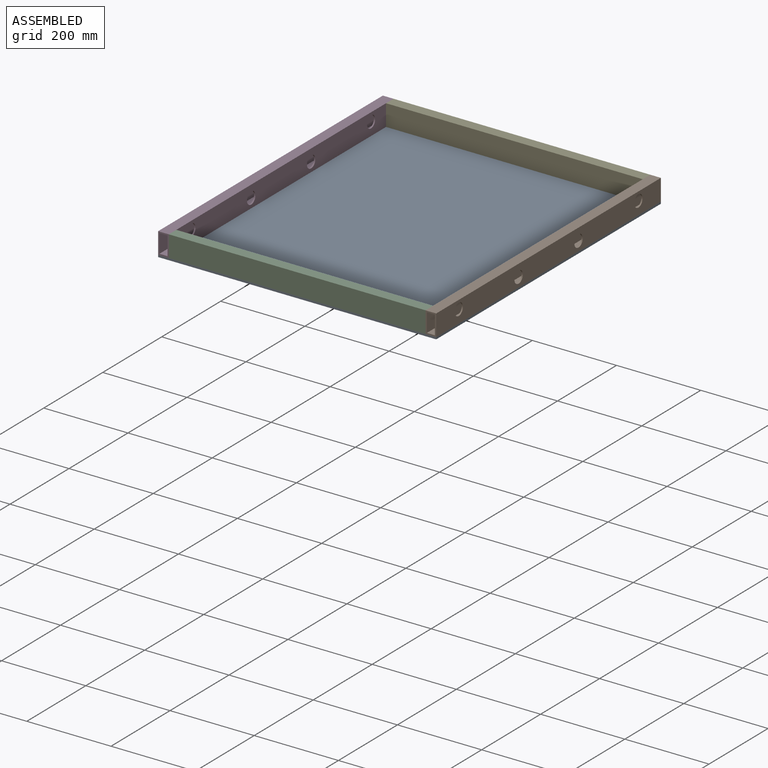
[diagram: assembled view]
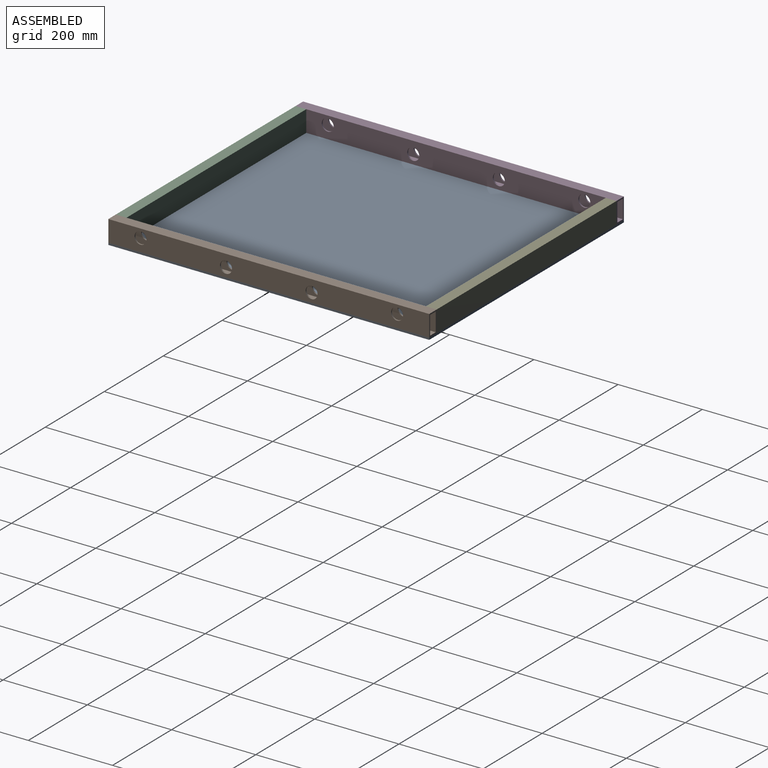
[diagram: assembled view, second angle]
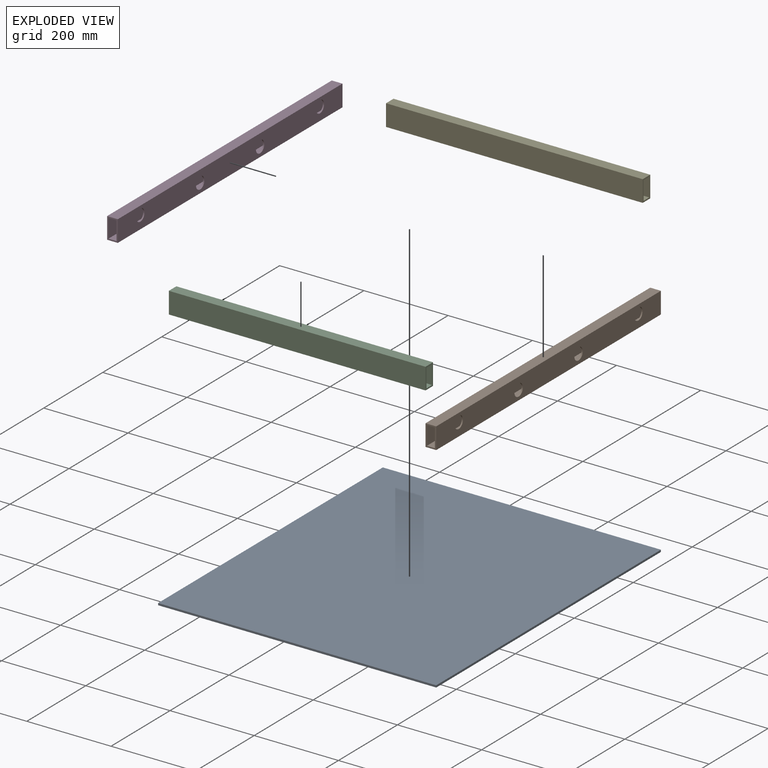
[diagram: exploded view]
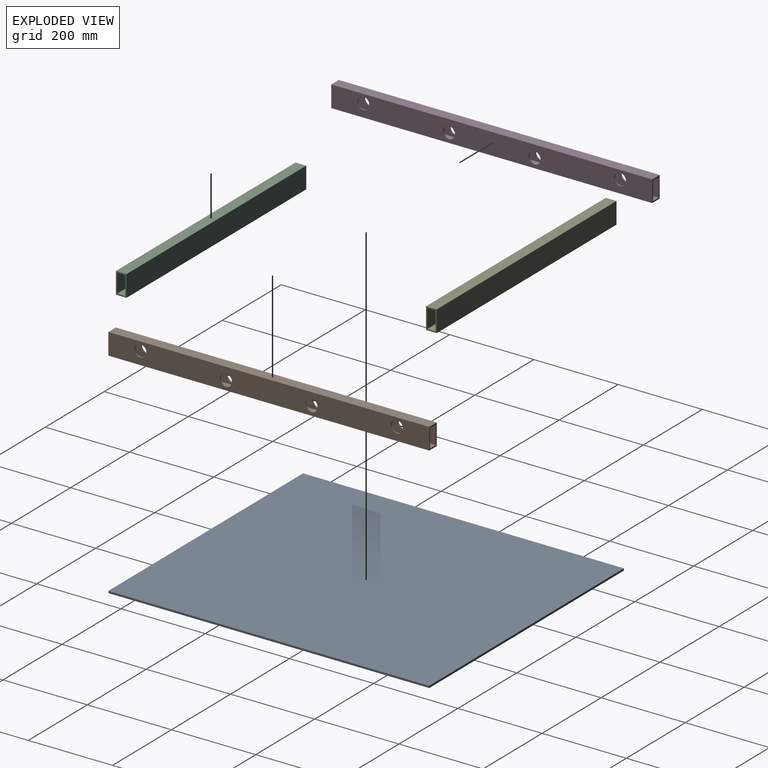
[diagram: exploded view, second angle]
ASSEMBLY  parts=5 mates=5
PART A: 6 faces, bbox 660.4x762x4.8 mm
  f0: plane 660.4x4.76mm, normal (0,-1,0), area 3145.2mm2, adj f1,f3,f4,f5
  f1: plane 762x4.76mm, normal (-1,0,0), area 3629mm2, adj f0,f2,f4,f5
  f2: plane 660.4x4.76mm, normal (0,1,0), area 3145.2mm2, adj f1,f3,f4,f5
  f3: plane 762x4.76mm, normal (1,0,0), area 3629mm2, adj f0,f2,f4,f5
  f4: plane 762x660.4mm, normal (0,0,-1), area 503224.8mm2, adj f0,f1,f2,f3
  f5: plane 762x660.4mm, normal (0,0,1), area 503224.8mm2, adj f0,f1,f2,f3
PART B: 18 faces, bbox 25.4x762x50.8 mm
  f0: plane 762x44.45mm, normal (-1,0,0), area 31310.3mm2, adj f1,f7,f8,f9,f10,f11,f12,f13
  f1: plane 762x19.05mm, normal (0,0,1), area 14516.1mm2, adj f0,f2,f8,f9
  f2: plane 762x44.45mm, normal (1,0,0), area 31310.3mm2, adj f1,f7,f8,f9,f14,f15,f16,f17
  f3: plane 762x50.8mm, normal (-1,0,0), area 36149mm2, adj f4,f6,f8,f9,f14,f15,f16,f17
  f4: plane 762x25.4mm, normal (0,0,-1), area 19354.8mm2, adj f3,f5,f8,f9
  f5: plane 762x50.8mm, normal (1,0,0), area 36149mm2, adj f4,f6,f8,f9,f10,f11,f12,f13
  f6: plane 762x25.4mm, normal (0,0,1), area 19354.8mm2, adj f3,f5,f8,f9
  f7: plane 762x19.05mm, normal (0,0,-1), area 14516.1mm2, adj f0,f2,f8,f9
  f8: plane 50.8x25.4mm, normal (0,-1,0), area 443.5mm2, adj f0,f1,f2,f3,f4,f5,f6,f7
  f9: plane 50.8x25.4mm, normal (0,1,0), area 443.5mm2, adj f0,f1,f2,f3,f4,f5,f6,f7
  f10: cylinder r=14.27mm len=28.55mm, axis (1,0,0), area 284.8mm2, adj f0,f5
  f11: cylinder r=14.27mm len=28.55mm, axis (1,0,0), area 284.8mm2, adj f0,f5
  f12: cylinder r=14.27mm len=28.55mm, axis (1,0,0), area 284.8mm2, adj f0,f5
  f13: cylinder r=14.27mm len=28.55mm, axis (1,0,0), area 284.8mm2, adj f0,f5
  f14: cylinder r=14.27mm len=28.55mm, axis (1,0,0), area 284.8mm2, adj f2,f3
  f15: cylinder r=14.27mm len=28.55mm, axis (1,0,0), area 284.8mm2, adj f2,f3
  f16: cylinder r=14.27mm len=28.55mm, axis (1,0,0), area 284.8mm2, adj f2,f3
  f17: cylinder r=14.27mm len=28.55mm, axis (1,0,0), area 284.8mm2, adj f2,f3
PART C: 10 faces, bbox 609.6x25.4x50.8 mm
  f0: plane 609.6x25.4mm, normal (0,0,-1), area 15483.8mm2, adj f1,f7,f8,f9
  f1: plane 609.6x50.8mm, normal (0,1,0), area 30967.7mm2, adj f0,f2,f8,f9
  f2: plane 609.6x25.4mm, normal (0,0,1), area 15483.8mm2, adj f1,f7,f8,f9
  f3: plane 609.6x44.45mm, normal (0,1,0), area 27096.7mm2, adj f4,f6,f8,f9
  f4: plane 609.6x19.05mm, normal (0,0,-1), area 11612.9mm2, adj f3,f5,f8,f9
  f5: plane 609.6x44.45mm, normal (0,-1,0), area 27096.7mm2, adj f4,f6,f8,f9
  f6: plane 609.6x19.05mm, normal (0,0,1), area 11612.9mm2, adj f3,f5,f8,f9
  f7: plane 609.6x50.8mm, normal (0,-1,0), area 30967.7mm2, adj f0,f2,f8,f9
  f8: plane 50.8x25.4mm, normal (1,0,0), area 443.5mm2, adj f0,f1,f2,f3,f4,f5,f6,f7
  f9: plane 50.8x25.4mm, normal (-1,0,0), area 443.5mm2, adj f0,f1,f2,f3,f4,f5,f6,f7
PART D: 18 faces, bbox 25.4x762x50.8 mm
  f0: plane 762x44.45mm, normal (-1,0,0), area 31310.3mm2, adj f1,f7,f8,f9,f10,f11,f12,f13
  f1: plane 762x19.05mm, normal (0,0,1), area 14516.1mm2, adj f0,f2,f8,f9
  f2: plane 762x44.45mm, normal (1,0,0), area 31310.3mm2, adj f1,f7,f8,f9,f14,f15,f16,f17
  f3: plane 762x50.8mm, normal (-1,0,0), area 36149mm2, adj f4,f6,f8,f9,f14,f15,f16,f17
  f4: plane 762x25.4mm, normal (0,0,-1), area 19354.8mm2, adj f3,f5,f8,f9
  f5: plane 762x50.8mm, normal (1,0,0), area 36149mm2, adj f4,f6,f8,f9,f10,f11,f12,f13
  f6: plane 762x25.4mm, normal (0,0,1), area 19354.8mm2, adj f3,f5,f8,f9
  f7: plane 762x19.05mm, normal (0,0,-1), area 14516.1mm2, adj f0,f2,f8,f9
  f8: plane 50.8x25.4mm, normal (0,-1,0), area 443.5mm2, adj f0,f1,f2,f3,f4,f5,f6,f7
  f9: plane 50.8x25.4mm, normal (0,1,0), area 443.5mm2, adj f0,f1,f2,f3,f4,f5,f6,f7
  f10: cylinder r=14.27mm len=28.55mm, axis (1,0,0), area 284.8mm2, adj f0,f5
  f11: cylinder r=14.27mm len=28.55mm, axis (1,0,0), area 284.8mm2, adj f0,f5
  f12: cylinder r=14.27mm len=28.55mm, axis (1,0,0), area 284.8mm2, adj f0,f5
  f13: cylinder r=14.27mm len=28.55mm, axis (1,0,0), area 284.8mm2, adj f0,f5
  f14: cylinder r=14.27mm len=28.55mm, axis (1,0,0), area 284.8mm2, adj f2,f3
  f15: cylinder r=14.27mm len=28.55mm, axis (1,0,0), area 284.8mm2, adj f2,f3
  f16: cylinder r=14.27mm len=28.55mm, axis (1,0,0), area 284.8mm2, adj f2,f3
  f17: cylinder r=14.27mm len=28.55mm, axis (1,0,0), area 284.8mm2, adj f2,f3
PART E: 10 faces, bbox 609.6x25.4x50.8 mm
  f0: plane 609.6x19.05mm, normal (0,0,-1), area 11612.9mm2, adj f1,f7,f8,f9
  f1: plane 609.6x44.45mm, normal (0,-1,0), area 27096.7mm2, adj f0,f2,f8,f9
  f2: plane 609.6x19.05mm, normal (0,0,1), area 11612.9mm2, adj f1,f7,f8,f9
  f3: plane 609.6x50.8mm, normal (0,-1,0), area 30967.7mm2, adj f4,f6,f8,f9
  f4: plane 609.6x25.4mm, normal (0,0,-1), area 15483.8mm2, adj f3,f5,f8,f9
  f5: plane 609.6x50.8mm, normal (0,1,0), area 30967.7mm2, adj f4,f6,f8,f9
  f6: plane 609.6x25.4mm, normal (0,0,1), area 15483.8mm2, adj f3,f5,f8,f9
  f7: plane 609.6x44.45mm, normal (0,1,0), area 27096.7mm2, adj f0,f2,f8,f9
  f8: plane 50.8x25.4mm, normal (1,0,0), area 443.5mm2, adj f0,f1,f2,f3,f4,f5,f6,f7
  f9: plane 50.8x25.4mm, normal (-1,0,0), area 443.5mm2, adj f0,f1,f2,f3,f4,f5,f6,f7
PLACE A t=(-278.36,319.37,-162.74)mm
PLACE B t=(-278.36,319.37,-162.74)mm
PLACE C t=(-278.36,319.37,-162.74)mm
PLACE D t=(-278.36,319.37,-162.74)mm
PLACE E t=(-278.36,319.37,-162.74)mm
MATE fastened C.f2 <-> B.f6  axis (0,0,1) through (356.64,-442.63,-111.94)mm
MATE fastened D.f6 <-> C.f2  axis (0,0,1) through (-252.96,-442.63,-111.94)mm
MATE fastened D.f6 <-> E.f6  axis (0,0,1) through (-252.96,319.37,-111.94)mm
MATE fastened A.f5 <-> D.f4  axis (0,0,1) through (-278.36,-442.63,-162.74)mm
MATE fastened B.f6 <-> E.f6  axis (0,0,1) through (356.64,319.37,-111.94)mm
